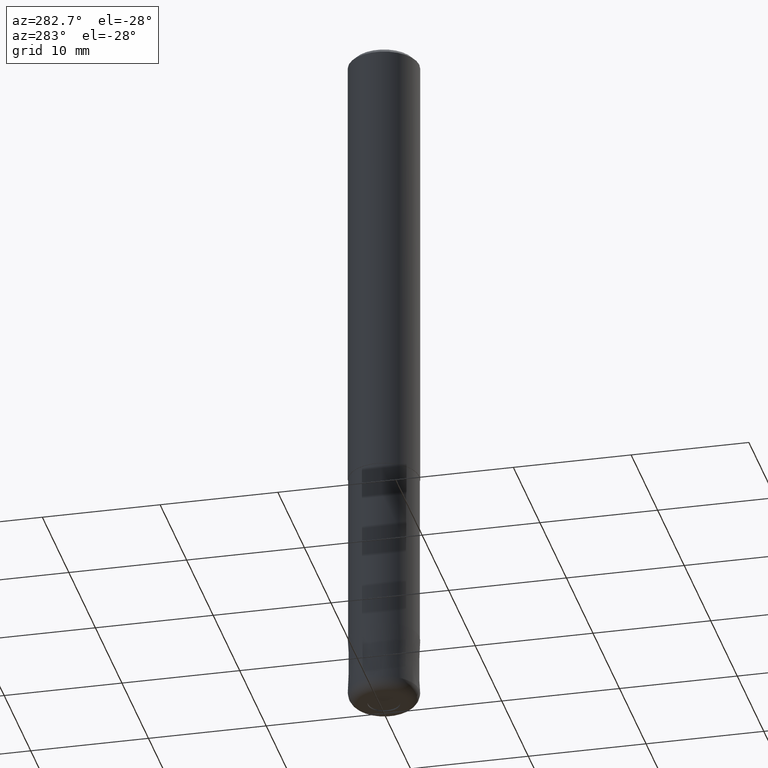
[diagram: clean part render]
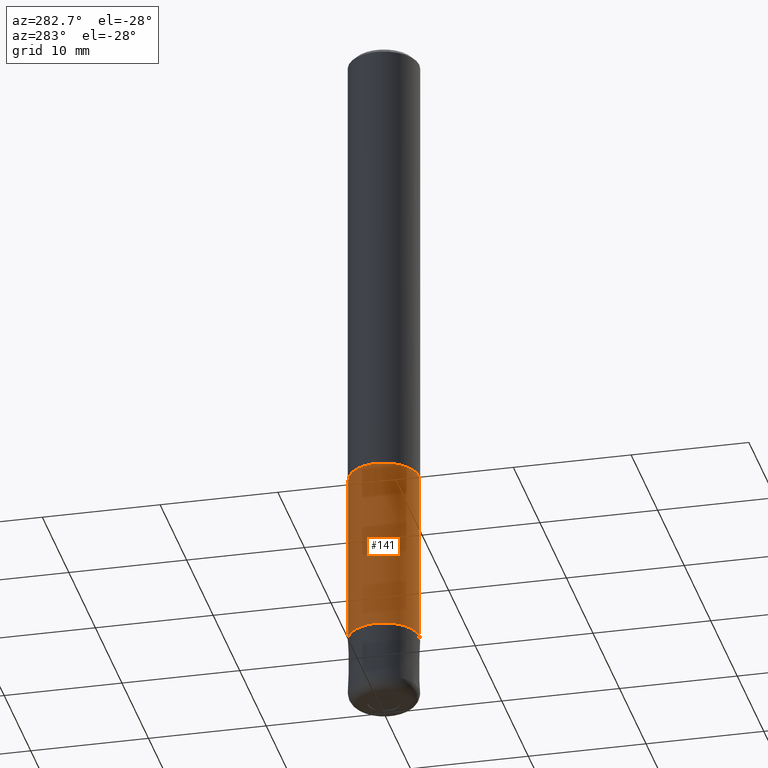
[diagram: same view with one face highlighted and labeled with its STEP entity id]
A machine part, auxiliary view. The second image highlights one B-rep face of the part: STEP entity #141.
In plain terms, the highlighted cylindrical surface (edge-blend (fillet) strip) has radius 2.975 mm, axis along (-0, -0, 1).
Its self-contained STEP definition (entity closure, byte-faithful):
#123=VERTEX_POINT('',#310);
#127=EDGE_CURVE('',#165,#225,#314,.T.);
#141=ADVANCED_FACE('',(#331),#332,.T.);
#151=EDGE_CURVE('',#279,#165,#346,.T.);
#165=VERTEX_POINT('',#360);
#179=EDGE_CURVE('',#279,#123,#377,.T.);
#183=EDGE_CURVE('',#225,#123,#381,.T.);
#225=VERTEX_POINT('',#428);
#279=VERTEX_POINT('',#490);
#310=CARTESIAN_POINT('',(0.0,2.97495,-54.0));
#314=CIRCLE('',#519,2.97495);
#331=FACE_OUTER_BOUND('',#539,.T.);
#332=CYLINDRICAL_SURFACE('',#540,2.97495);
#346=LINE('',#556,#557);
#360=CARTESIAN_POINT('',(3.64314267230388E-016,-2.97495,-39.0));
#377=CIRCLE('',#599,2.97495);
#381=LINE('',#605,#606);
#428=CARTESIAN_POINT('',(0.0,2.97495,-39.0));
#490=CARTESIAN_POINT('',(3.64314267230388E-016,-2.97495,-54.0));
#519=AXIS2_PLACEMENT_3D('',#750,#751,#752);
#539=EDGE_LOOP('',(#774,#775,#776,#777));
#540=AXIS2_PLACEMENT_3D('',#778,#779,#780);
#556=CARTESIAN_POINT('',(3.64314267230388E-016,-2.97495,-46.5));
#557=VECTOR('',#800,1.0);
#599=AXIS2_PLACEMENT_3D('',#837,#838,#839);
#605=CARTESIAN_POINT('',(-3.64314267230388E-016,2.97495,-46.5));
#606=VECTOR('',#843,1.0);
#750=CARTESIAN_POINT('',(0.0,0.0,-39.0));
#751=DIRECTION('',(0.0,0.0,-1.0));
#752=DIRECTION('',(0.0,1.0,0.0));
#774=ORIENTED_EDGE('',*,*,#183,.T.);
#775=ORIENTED_EDGE('',*,*,#179,.F.);
#776=ORIENTED_EDGE('',*,*,#151,.T.);
#777=ORIENTED_EDGE('',*,*,#127,.T.);
#778=CARTESIAN_POINT('',(0.0,0.0,-46.5));
#779=DIRECTION('',(-0.0,-0.0,1.0));
#780=DIRECTION('',(0.0,1.0,0.0));
#800=DIRECTION('',(-0.0,-0.0,1.0));
#837=CARTESIAN_POINT('',(0.0,0.0,-54.0));
#838=DIRECTION('',(0.0,0.0,-1.0));
#839=DIRECTION('',(0.0,1.0,0.0));
#843=DIRECTION('',(0.0,0.0,-1.0));